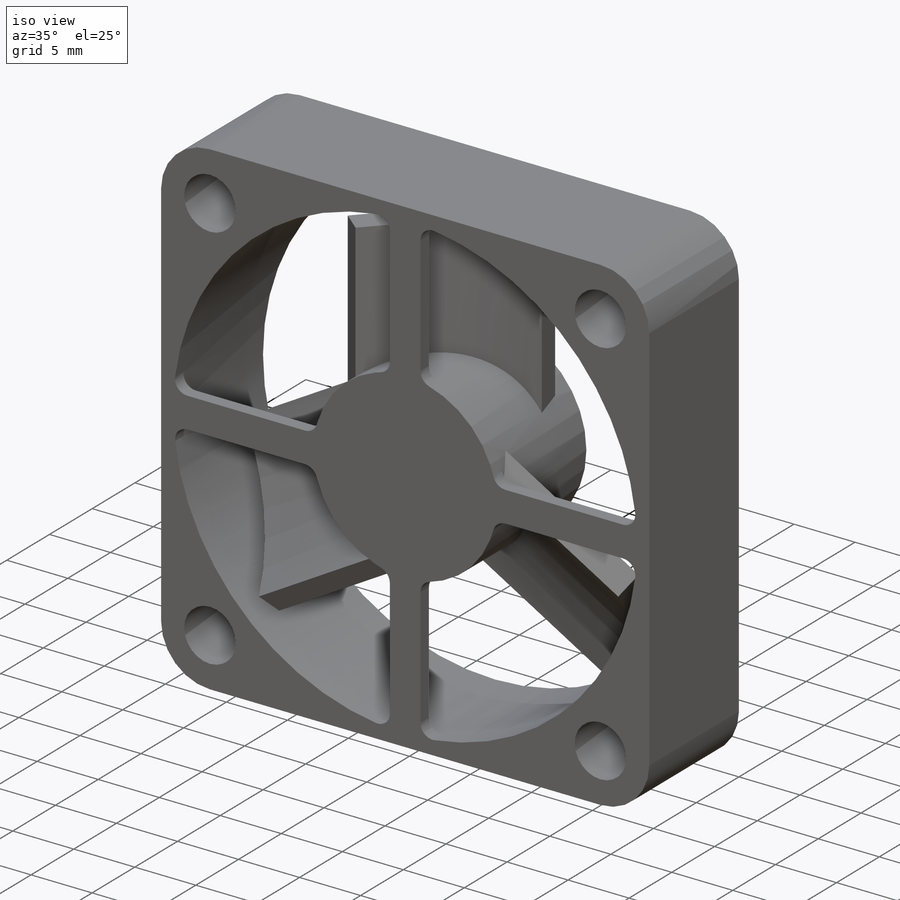
[diagram: iso view]
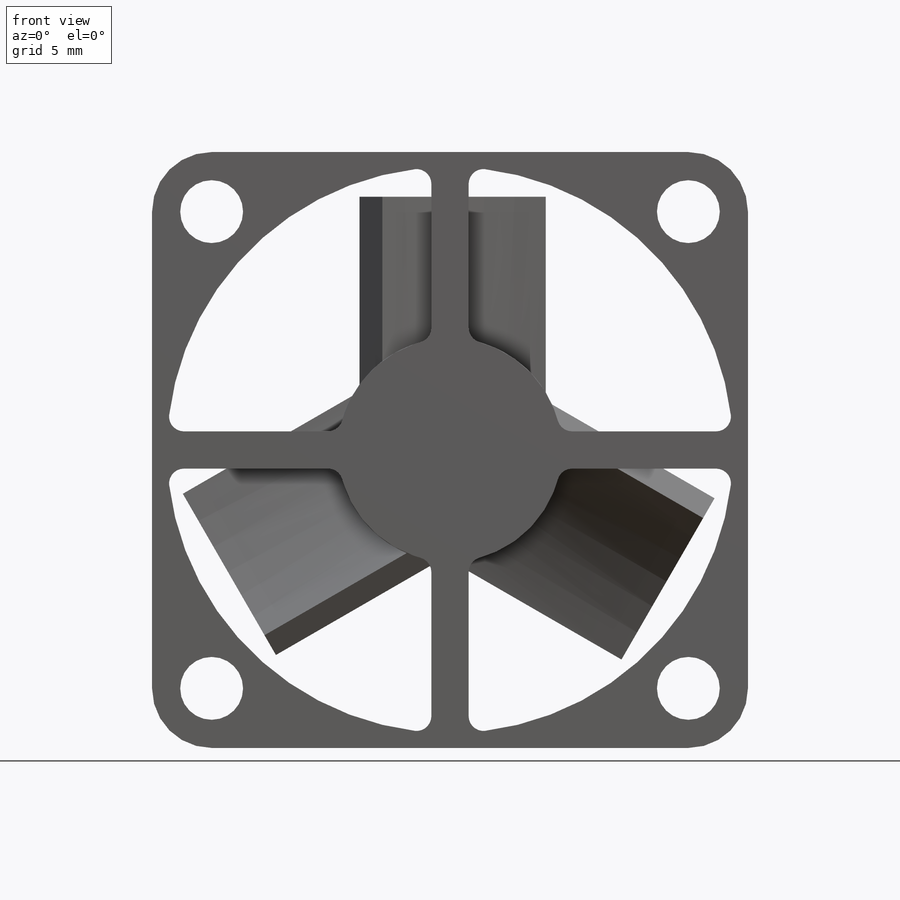
[diagram: front view]
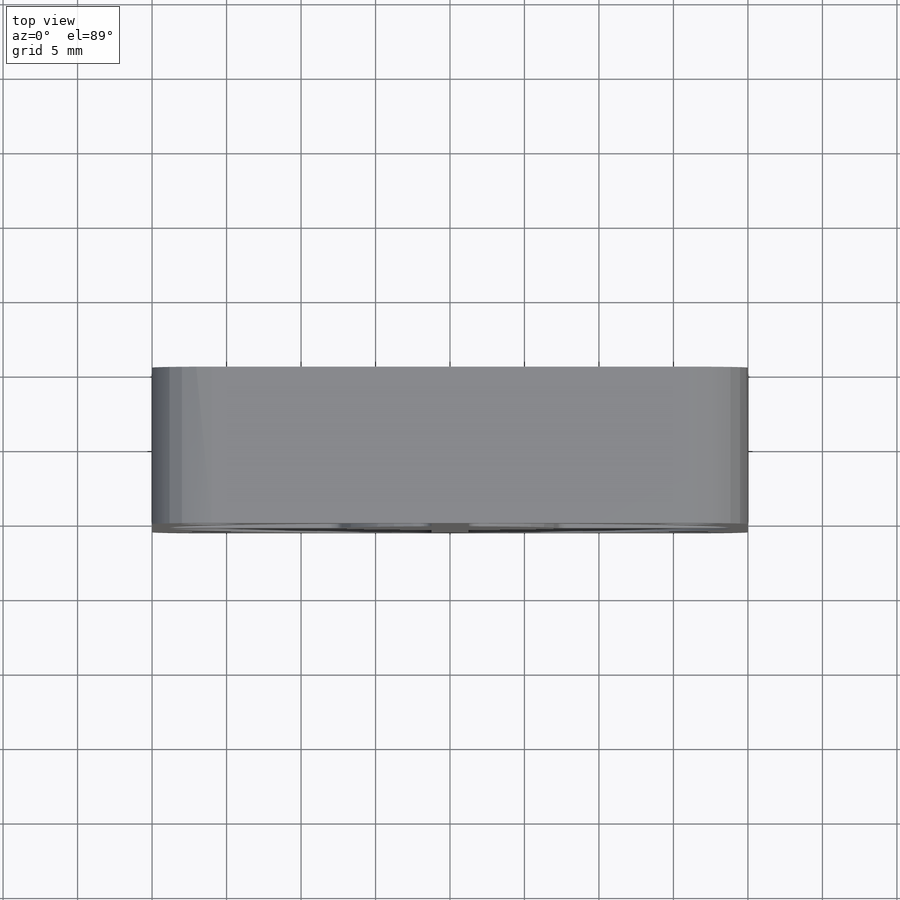
[diagram: top view]
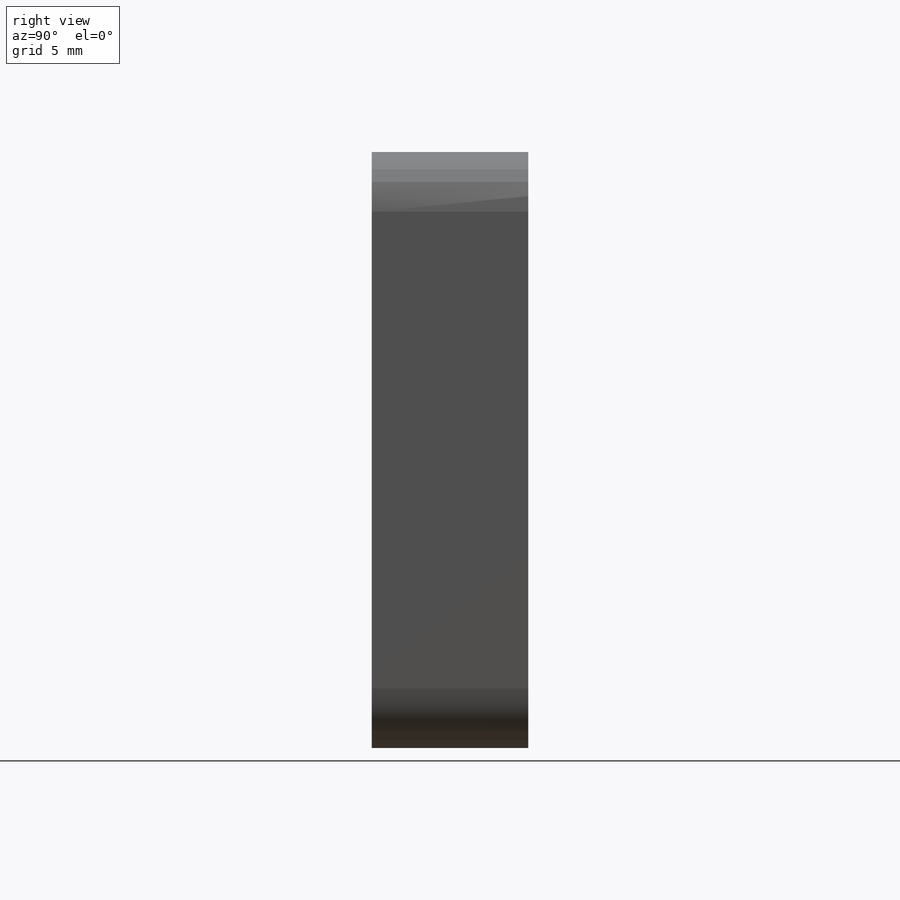
[diagram: right view]
SOLIDWORKS PART (.sldprt)
format: sldprt  version: not decoded by parser v0  size: 340,480 bytes
history: native  units: mm
features: sketch x5, extrude x3, pattern_circular x3, material x1, cut_extrude x1 (+11 scaffold rows collapsed)
feature tree (24):
  scaffold x11  (default folders/planes/origin — collapsed)
  material  "Material <not specified>"
  sketch  "Sketch1"  dims[D1=4.0mm D4=38.0mm D5=4.22mm D2=40.0mm D3=32.0mm D6=32.0mm]
  extrude  "Boss-Extrude1"  Depth=10.5mm
  sketch  "Sketch2"  dims[D1=15.0mm D2=1.0mm D3=2.5mm]
  extrude  "Boss-Extrude2"  Depth=1mm
  pattern_circular  "CirPattern1"  Count=4 Angle=360deg
  sketch  "Sketch4"
  extrude  "Boss-Extrude3"  [1 undecoded]
  sketch  "Sketch5"  dims[D1=17.0mm D5=2.0mm D6=1.0mm D7=5.0mm]
  pattern_circular  "CirPattern2"  Count=3 Angle=360deg
  sketch  "Sketch6"  dims[D1=6.0mm]
  cut_extrude  "Cut-Extrude1"  Depth=3.7mm
  pattern_circular  "CirPattern3"  Count=4 Angle=360deg
decode coverage: 10 of 12 modeling features carry decoded parameters
note: 1 parameter value undecoded
note: suppression state not decoded; provenance and decode notes live in map.json
